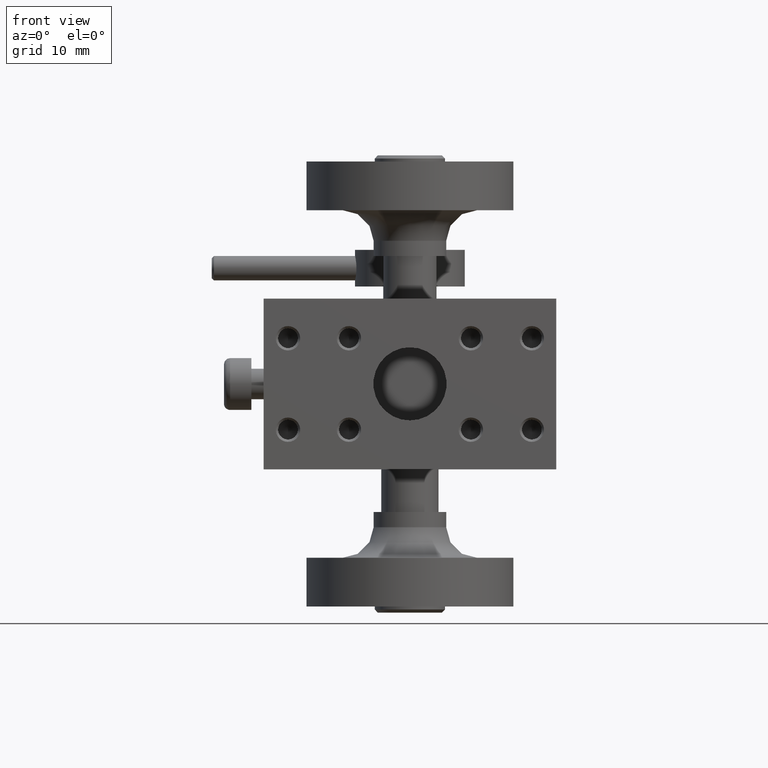
[diagram: clean part render]
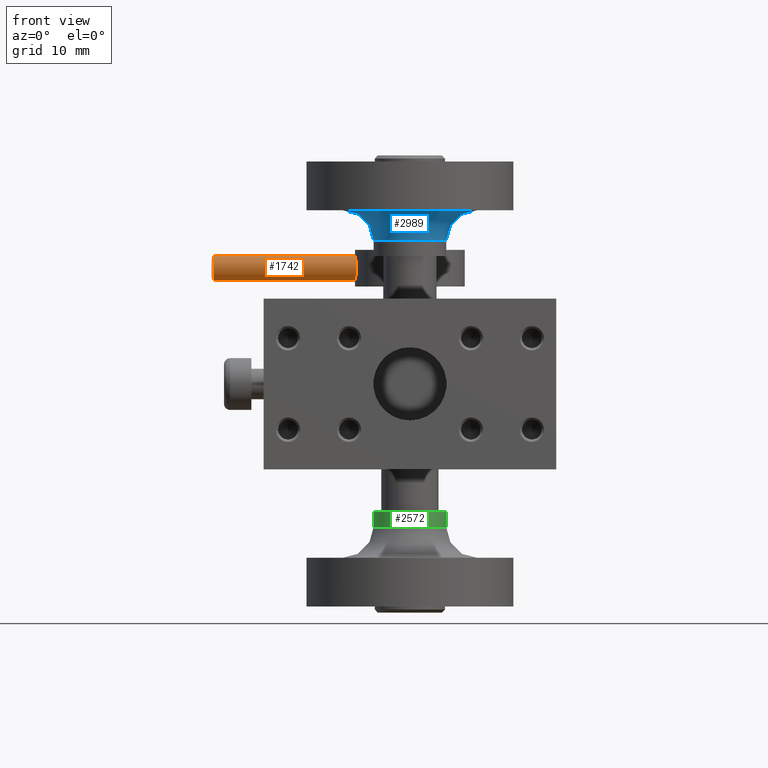
[diagram: same view with three faces highlighted in distinct colors, each labeled with its STEP entity id]
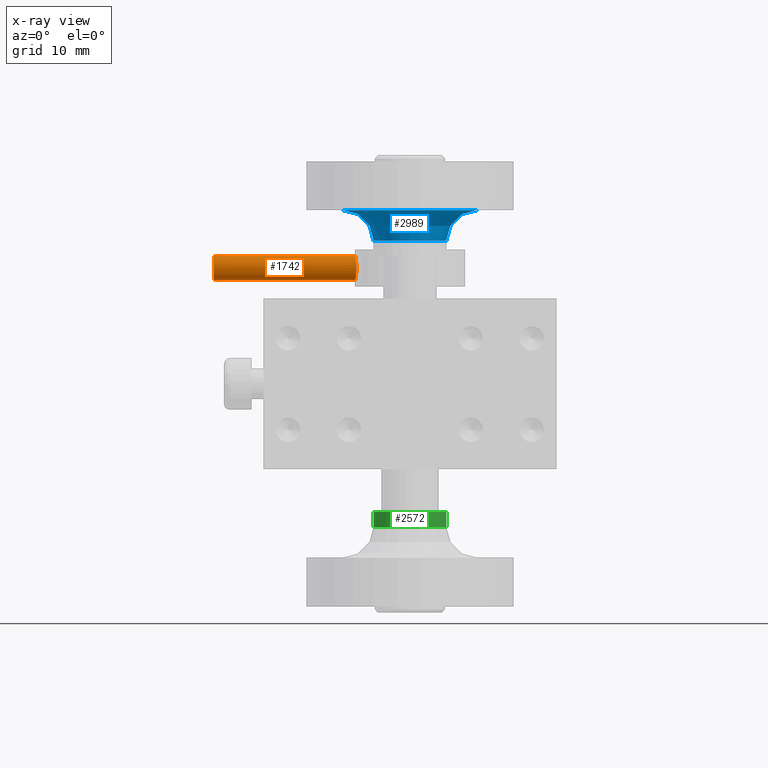
[diagram: x-ray of the same camera — body ghosted, the three highlighted faces saturated]
A machine part, front view with three faces highlighted in distinct colors.
The next image is the same camera in x-ray (body ghosted, the three faces saturated) — at least one of them is partly hidden behind the body in this view.
Their STEP definitions:

[orange] entity #1742 — the highlighted cylindrical surface (bore or boss wall) has radius 2 mm, axis along (-1, 0, 0).
#64 = CARTESIAN_POINT ( 'NONE',  ( -8.831305010887076534, 58.26405407196933339, 20.00179081906769696 ) ) ;
#88 = CARTESIAN_POINT ( 'NONE',  ( -8.818859570178997132, 58.20268530954765396, 19.88701229075947552 ) ) ;
#150 = CARTESIAN_POINT ( 'NONE',  ( -8.774993534416102747, 61.99987211788808139, 19.13263091305865160 ) ) ;
#184 = CARTESIAN_POINT ( 'NONE',  ( -8.977633386810012439, 60.64564713021426456, 17.10254942666283995 ) ) ;
#190 = B_SPLINE_CURVE_WITH_KNOTS ( 'NONE', 3,
 ( #247, #687, #712, #3403, #4994, #3052, #1072, #150, #4967, #2241, #299, #1874, #3456, #1009, #4138, #962, #3225, #1375, #2207, #1786, #4911, #2966, #2056, #1280, #2549, #595, #2180, #4525, #2867, #64, #88, #4502, #1635, #2424, #3755, #1225, #2574, #3996, #3367, #621, #987, #4937, #1401, #238, #4784, #573, #451, #2991, #3608, #2599, #1661, #839, #184, #3632, #1761, #211, #4547, #4117 ),
 .UNSPECIFIED., .T., .F.,
 ( 4, 2, 2, 2, 2, 2, 2, 2, 2, 2, 2, 2, 2, 2, 2, 2, 2, 2, 2, 2, 2, 2, 2, 2, 2, 2, 2, 2, 4 ),
 ( 0.000000000000000000, 0.0003941352477278607875, 0.0007882704954557215749, 0.001576540990911444451, 0.001970676238639300793, 0.002364811486367156702, 0.002758946734095013044, 0.003153081981822869386, 0.003941352477278575565, 0.004335487725006429739, 0.004729622972734283913, 0.005123758220462138087, 0.005517893468189993128, 0.006306163963645687598, 0.006700299211373531363, 0.007094434459101375129, 0.007488569706829219762, 0.007882704954557062660, 0.008276840202284908160, 0.008670975450012751926, 0.009065110697740595691, 0.009459245945468437722, 0.009853381193196283222, 0.01024751644092412699, 0.01103578693637981452, 0.01142992218410765828, 0.01182405743183550205, 0.01221819267956334755, 0.01261232792729118958 ),
 .UNSPECIFIED. ) ;
#211 = CARTESIAN_POINT ( 'NONE',  ( -8.917502514765095256, 61.22065754592762943, 17.41037671073584647 ) ) ;
#238 = CARTESIAN_POINT ( 'NONE',  ( -8.902977262330342256, 58.67875198931618286, 17.49293160655788526 ) ) ;
#247 = CARTESIAN_POINT ( 'NONE',  ( -8.888156550016324431, 61.41445153412981028, 17.58602444943420196 ) ) ;
#299 = CARTESIAN_POINT ( 'NONE',  ( -8.797990074076505351, 61.89683860794755077, 19.64735186239168740 ) ) ;
#451 = CARTESIAN_POINT ( 'NONE',  ( -8.957054917084052548, 59.11356516145057327, 17.20244084483862679 ) ) ;
#531 = CARTESIAN_POINT ( 'NONE',  ( -32.14644660940670207, 60.00000000000000000, 20.99999999999999645 ) ) ;
#573 = CARTESIAN_POINT ( 'NONE',  ( -8.944617482695820243, 58.99706819747080999, 17.26468799776463925 ) ) ;
#595 = CARTESIAN_POINT ( 'NONE',  ( -8.946534159258517249, 58.99114958408279108, 20.74644275218007650 ) ) ;
#621 = CARTESIAN_POINT ( 'NONE',  ( -8.819092993181074647, 58.20382329942341926, 18.11063649063985537 ) ) ;
#687 = CARTESIAN_POINT ( 'NONE',  ( -8.873338164349718227, 61.50756757836691690, 17.67917183912604173 ) ) ;
#712 = CARTESIAN_POINT ( 'NONE',  ( -8.858679671142855483, 61.59036795561515021, 17.78021660460191455 ) ) ;
#839 = CARTESIAN_POINT ( 'NONE',  ( -8.985831152566237989, 60.52092170582729125, 17.06459548621976907 ) ) ;
#962 = CARTESIAN_POINT ( 'NONE',  ( -8.917804242292493910, 61.22800950492057126, 20.60020480404096688 ) ) ;
#987 = CARTESIAN_POINT ( 'NONE',  ( -8.831557985451883752, 58.26534839263251797, 17.99603232198573366 ) ) ;
#1009 = CARTESIAN_POINT ( 'NONE',  ( -8.858998000904030334, 61.58858379776224723, 20.22202887588643350 ) ) ;
#1072 = CARTESIAN_POINT ( 'NONE',  ( -8.774906738433703168, 62.00025293390437753, 18.74056602299042851 ) ) ;
#1104 = CARTESIAN_POINT ( 'NONE',  ( -8.888156550016324431, 61.41445153412979607, 17.58602444943419840 ) ) ;
#1159 = CYLINDRICAL_SURFACE ( 'NONE', #5023, 1.999999999999998224 ) ;
#1225 = CARTESIAN_POINT ( 'NONE',  ( -8.774982090656209266, 58.00007767276981951, 18.86646384114354547 ) ) ;
#1254 = FACE_OUTER_BOUND ( 'NONE', #3427, .T. ) ;
#1280 = CARTESIAN_POINT ( 'NONE',  ( -8.985820059719086927, 59.47875781262972339, 20.93535415985943615 ) ) ;
#1375 = CARTESIAN_POINT ( 'NONE',  ( -8.977812146925176151, 60.64325570413960520, 20.89829801675436372 ) ) ;
#1401 = CARTESIAN_POINT ( 'NONE',  ( -8.873680949680938568, 58.49451441635044091, 17.67694875168363566 ) ) ;
#1567 = CARTESIAN_POINT ( 'NONE',  ( -32.50000000000000000, 60.00000000000000000, 19.00000000000000000 ) ) ;
#1635 = CARTESIAN_POINT ( 'NONE',  ( -8.789293611419482843, 58.06376704432153701, 19.51776164720243045 ) ) ;
#1661 = CARTESIAN_POINT ( 'NONE',  ( -8.997042444944609585, 60.26409878814008181, 17.01319304267731169 ) ) ;
#1668 = VERTEX_POINT ( 'NONE', #531 ) ;
#1742 = ADVANCED_FACE ( 'NONE', ( #1254, #4690 ), #1159, .T. ) ;
#1761 = CARTESIAN_POINT ( 'NONE',  ( -8.944423916348823056, 61.00455798733531054, 17.26570755168513926 ) ) ;
#1786 = CARTESIAN_POINT ( 'NONE',  ( -8.997112373006842745, 60.26165816729427860, 20.98712124053621508 ) ) ;
#1799 = VERTEX_POINT ( 'NONE', #1104 ) ;
#1874 = CARTESIAN_POINT ( 'NONE',  ( -8.819019693329307685, 61.79652934760862593, 19.88856257040423614 ) ) ;
#2056 = CARTESIAN_POINT ( 'NONE',  ( -8.997071154409214344, 59.73662535041851385, 20.98693808054947496 ) ) ;
#2083 = DIRECTION ( 'NONE',  ( 1.000000000000000000, -0.000000000000000000, -0.000000000000000000 ) ) ;
#2180 = CARTESIAN_POINT ( 'NONE',  ( -8.917321655240677103, 58.76875409608842205, 20.59736509075305833 ) ) ;
#2207 = CARTESIAN_POINT ( 'NONE',  ( -8.985981899307597942, 60.51829080094172753, 20.93610187406582313 ) ) ;
#2241 = CARTESIAN_POINT ( 'NONE',  ( -8.789577007395228847, 61.93495189037356852, 19.52270298812143068 ) ) ;
#2424 = CARTESIAN_POINT ( 'NONE',  ( -8.777923874578048569, 58.01285815843269233, 19.26142395349653569 ) ) ;
#2549 = CARTESIAN_POINT ( 'NONE',  ( -8.977442820382433908, 59.35186146320176448, 20.89654338184016069 ) ) ;
#2574 = CARTESIAN_POINT ( 'NONE',  ( -8.778011871873971472, 58.01324506886408017, 18.73573897015779366 ) ) ;
#2599 = CARTESIAN_POINT ( 'NONE',  ( -8.999995974400135879, 60.13113526681433285, 17.00001811519959816 ) ) ;
#2867 = CARTESIAN_POINT ( 'NONE',  ( -8.858609042981557380, 58.40924474416372192, 20.21925830989324879 ) ) ;
#2966 = CARTESIAN_POINT ( 'NONE',  ( -8.999965160138764020, 59.86660707435080298, 20.99984322052005226 ) ) ;
#2991 = CARTESIAN_POINT ( 'NONE',  ( -8.987908251906606694, 59.47473502122881683, 17.05268408847683403 ) ) ;
#3052 = CARTESIAN_POINT ( 'NONE',  ( -8.787285142150922823, 61.94781875897611201, 18.47651796090034537 ) ) ;
#3155 = DIRECTION ( 'NONE',  ( -1.000000000000000000, 0.000000000000000000, 0.000000000000000000 ) ) ;
#3175 = AXIS2_PLACEMENT_3D ( 'NONE', #4920, #2083, #4533 ) ;
#3225 = CARTESIAN_POINT ( 'NONE',  ( -8.946703827696220301, 61.00799107388254328, 20.74734285137749978 ) ) ;
#3335 = EDGE_CURVE ( 'NONE', #1668, #1668, #3502, .T. ) ;
#3367 = CARTESIAN_POINT ( 'NONE',  ( -8.797961077400529462, 58.10302007321767803, 18.35294100047950039 ) ) ;
#3403 = CARTESIAN_POINT ( 'NONE',  ( -8.831331672680617473, 61.73581584198189631, 17.99795951745396039 ) ) ;
#3427 = EDGE_LOOP ( 'NONE', ( #4430 ) ) ;
#3456 = CARTESIAN_POINT ( 'NONE',  ( -8.831761906039057308, 61.73361636401243402, 20.00574716427206212 ) ) ;
#3502 = CIRCLE ( 'NONE', #3175, 1.999999999999998224 ) ;
#3608 = CARTESIAN_POINT ( 'NONE',  ( -9.000008038450872050, 59.73855918929196918, 16.99996382697081998 ) ) ;
#3632 = CARTESIAN_POINT ( 'NONE',  ( -8.956932993349274952, 60.88775717252571695, 17.20303976180867522 ) ) ;
#3755 = CARTESIAN_POINT ( 'NONE',  ( -8.774946839711258662, 57.99992300984874305, 19.13119929170323630 ) ) ;
#3996 = CARTESIAN_POINT ( 'NONE',  ( -8.789439671023046685, 58.06442828895452379, 18.47981618663526504 ) ) ;
#4117 = CARTESIAN_POINT ( 'NONE',  ( -8.888156550016324431, 61.41445153412981028, 17.58602444943420196 ) ) ;
#4138 = CARTESIAN_POINT ( 'NONE',  ( -8.873582917087979638, 61.50609965658679101, 20.32243317948092454 ) ) ;
#4290 = EDGE_LOOP ( 'NONE', ( #4566 ) ) ;
#4430 = ORIENTED_EDGE ( 'NONE', *, *, #4761, .F. ) ;
#4502 = CARTESIAN_POINT ( 'NONE',  ( -8.797828561545564696, 58.10241289614768334, 19.64520855834951263 ) ) ;
#4525 = CARTESIAN_POINT ( 'NONE',  ( -8.873461614660152819, 58.49323957847180822, 20.32157423528913398 ) ) ;
#4533 = DIRECTION ( 'NONE',  ( 0.000000000000000000, 0.000000000000000000, 1.000000000000000000 ) ) ;
#4547 = CARTESIAN_POINT ( 'NONE',  ( -8.902974935682927082, 61.32133548989271787, 17.49287705974236928 ) ) ;
#4566 = ORIENTED_EDGE ( 'NONE', *, *, #3335, .T. ) ;
#4690 = FACE_OUTER_BOUND ( 'NONE', #4290, .T. ) ;
#4714 = DIRECTION ( 'NONE',  ( 0.000000000000000000, 0.000000000000000000, 1.000000000000000000 ) ) ;
#4761 = EDGE_CURVE ( 'NONE', #1799, #1799, #190, .T. ) ;
#4784 = CARTESIAN_POINT ( 'NONE',  ( -8.917489732322843921, 58.77916791236926031, 17.41042491229961087 ) ) ;
#4911 = CARTESIAN_POINT ( 'NONE',  ( -9.000034214852648873, 60.12864947651063119, 21.00015396694024261 ) ) ;
#4920 = CARTESIAN_POINT ( 'NONE',  ( -32.14644660940670207, 60.00000000000000000, 19.00000000000000000 ) ) ;
#4937 = CARTESIAN_POINT ( 'NONE',  ( -8.858783746034887940, 58.41022542782640414, 17.77951480668122031 ) ) ;
#4967 = CARTESIAN_POINT ( 'NONE',  ( -8.778025511689556026, 61.98669849325919756, 19.26511568933755925 ) ) ;
#4994 = CARTESIAN_POINT ( 'NONE',  ( -8.818663978387423441, 61.79826587525694492, 18.11498718503281324 ) ) ;
#5023 = AXIS2_PLACEMENT_3D ( 'NONE', #1567, #3155, #4714 ) ;

[blue] entity #2989 — the highlighted face is a freeform B-spline surface patch.
#8 = CARTESIAN_POINT ( 'NONE',  ( 10.84576281814307386, 33.33616983857814375, 28.50000000000000000 ) ) ;
#21 = CARTESIAN_POINT ( 'NONE',  ( -10.32301328794825857, 27.70051436524734711, 28.49999999999999645 ) ) ;
#32 = CARTESIAN_POINT ( 'NONE',  ( 10.81253218634800284, 29.47772096319952695, 28.49999999999999645 ) ) ;
#46 = CARTESIAN_POINT ( 'NONE',  ( -2.263678766794265940, 20.73540717239131581, 28.49999999999999645 ) ) ;
#56 = CARTESIAN_POINT ( 'NONE',  ( 4.476604233344045447, 41.54839239603763446, 28.50000000000000000 ) ) ;
#71 = CARTESIAN_POINT ( 'NONE',  ( -6.788948232526402116, 22.84266891922935017, 28.49999999999999645 ) ) ;
#81 = CARTESIAN_POINT ( 'NONE',  ( 10.32301328794719986, 35.29948563475921475, 28.50000000000000000 ) ) ;
#93 = CARTESIAN_POINT ( 'NONE',  ( -4.090524755338402763, 21.28874915770350995, 28.49999999999999645 ) ) ;
#104 = CARTESIAN_POINT ( 'NONE',  ( 4.729296338376712150, 41.43331652040602364, 28.50000000000000000 ) ) ;
#108 = CARTESIAN_POINT ( 'NONE',  ( -8.046773133671310418, 39.00954975399626079, 28.50000000000000000 ) ) ;
#129 = CARTESIAN_POINT ( 'NONE',  ( 9.499492088519998489, 37.04631907266310265, 28.50000000000000000 ) ) ;
#132 = CARTESIAN_POINT ( 'NONE',  ( -1.877512440152982576, 42.33859682355868159, 28.50000000000000000 ) ) ;
#157 = CARTESIAN_POINT ( 'NONE',  ( 3.039384346102490309, 42.07188887959836165, 28.50000000000000000 ) ) ;
#160 = CARTESIAN_POINT ( 'NONE',  ( -3.039888795196981075, 42.07174320190953409, 28.50000000000000000 ) ) ;
#179 = CARTESIAN_POINT ( 'NONE',  ( 2.067279717712431797, 42.30400195373159988, 28.50000000000000000 ) ) ;
#182 = CARTESIAN_POINT ( 'NONE',  ( -7.778174593052024299, 39.27817459305202163, 28.50000000000000000 ) ) ;
#185 = CARTESIAN_POINT ( 'NONE',  ( 5.546319072658886462, 22.00050791147807061, 28.49999999999999645 ) ) ;
#203 = CARTESIAN_POINT ( 'NONE',  ( 0.000000000000000000, 42.50000000000000000, 28.50000000000001066 ) ) ;
#207 = CARTESIAN_POINT ( 'NONE',  ( 2.220144429401344155, 42.27374004945463781, 28.50000000000000000 ) ) ;
#212 = CARTESIAN_POINT ( 'NONE',  ( 1.794773098638568376, 20.64730447128424728, 28.49999999999999645 ) ) ;
#222 = CARTESIAN_POINT ( 'NONE',  ( 0.000000000000000000, 42.50000000000000000, 28.50000000000000000 ) ) ;
#235 = CARTESIAN_POINT ( 'NONE',  ( 0.000000000000000000, 42.50000000000000000, 28.50000000000000000 ) ) ;
#240 = CARTESIAN_POINT ( 'NONE',  ( 6.019307287236565607, 22.29304937659483343, 28.49999999999999645 ) ) ;
#261 = CARTESIAN_POINT ( 'NONE',  ( 2.176536828188957884, 42.28262751245751616, 28.50000000000000000 ) ) ;
#266 = CARTESIAN_POINT ( 'NONE',  ( 3.632204160460883458, 21.11653339578368360, 28.49999999999999645 ) ) ;
#283 = CARTESIAN_POINT ( 'NONE',  ( -10.89668371099159572, 29.99544711161845356, 28.50000000000000000 ) ) ;
#292 = CARTESIAN_POINT ( 'NONE',  ( 1.877543261121425999, 20.66140888146818710, 28.49999999999999645 ) ) ;
#307 = CARTESIAN_POINT ( 'NONE',  ( -11.00003245526391993, 32.17316711392248862, 28.50000000000000000 ) ) ;
#316 = CARTESIAN_POINT ( 'NONE',  ( 9.102168392752393089, 25.32262682231831619, 28.49999999999999645 ) ) ;
#332 = CARTESIAN_POINT ( 'NONE',  ( -11.00000000000000000, 31.50000000000000000, 28.50000000000000000 ) ) ;
#340 = CARTESIAN_POINT ( 'NONE',  ( 8.994529674390957297, 25.16685965486529852, 28.49999999999999645 ) ) ;
#357 = CARTESIAN_POINT ( 'NONE',  ( -10.62094619133222650, 34.36876366042307041, 28.50000000000000000 ) ) ;
#369 = CARTESIAN_POINT ( 'NONE',  ( 10.47377425611592372, 28.11937428244305437, 28.49999999999999645 ) ) ;
#378 = CARTESIAN_POINT ( 'NONE',  ( -9.206950623405166567, 37.51930728723657182, 28.50000000000000000 ) ) ;
#391 = CARTESIAN_POINT ( 'NONE',  ( 10.85938925024986546, 33.25335304128855540, 28.50000000000000000 ) ) ;
#405 = CARTESIAN_POINT ( 'NONE',  ( -9.206950623405163014, 25.48069271276343528, 28.49999999999999645 ) ) ;
#416 = CARTESIAN_POINT ( 'NONE',  ( 11.00003245526391638, 30.82683288607993433, 28.50000000000000000 ) ) ;
#430 = CARTESIAN_POINT ( 'NONE',  ( -2.350747441563071582, 20.75370161607958863, 28.49999999999999645 ) ) ;
#441 = CARTESIAN_POINT ( 'NONE',  ( 6.097129069138452984, 40.65607778779104819, 28.50000000000000000 ) ) ;
#457 = CARTESIAN_POINT ( 'NONE',  ( -9.937246139662281763, 26.76809882622975323, 28.49999999999999645 ) ) ;
#467 = CARTESIAN_POINT ( 'NONE',  ( 8.791177963647635707, 38.15519334473045632, 28.50000000000000000 ) ) ;
#470 = CARTESIAN_POINT ( 'NONE',  ( -0.6715432973628792102, 42.48469658771519875, 28.50000000000000000 ) ) ;
#483 = CARTESIAN_POINT ( 'NONE',  ( -4.221108225916593071, 21.34200669538645556, 28.49999999999999645 ) ) ;
#493 = CARTESIAN_POINT ( 'NONE',  ( 4.895621435139932309, 41.35242786651708968, 28.50000000000000000 ) ) ;
#496 = CARTESIAN_POINT ( 'NONE',  ( 0.000000000000000000, 42.50000000000000000, 28.50000000000000000 ) ) ;
#512 = CARTESIAN_POINT ( 'NONE',  ( 0.000000000000000000, 23.42893218813452449, 28.50000000000001421 ) ) ;
#516 = CARTESIAN_POINT ( 'NONE',  ( 6.255256761407201438, 40.54834903357428288, 28.50000000000000000 ) ) ;
#520 = CARTESIAN_POINT ( 'NONE',  ( -1.753295508818672355, 42.35939989963333829, 28.50000000000000000 ) ) ;
#540 = CARTESIAN_POINT ( 'NONE',  ( 4.306540600045018152, 41.62198109385781919, 28.50000000000000000 ) ) ;
#543 = CARTESIAN_POINT ( 'NONE',  ( -3.715996679930620328, 41.85375794629277379, 28.50000000000000000 ) ) ;
#561 = CARTESIAN_POINT ( 'NONE',  ( -22.00000000000000711, 42.50000000000000711, 28.50000000000001776 ) ) ;
#572 = CARTESIAN_POINT ( 'NONE',  ( -1.338379036330881844, 42.41965708550475966, 28.50000000000000000 ) ) ;
#597 = CARTESIAN_POINT ( 'NONE',  ( 4.005819256978178977, 21.25521492875699892, 28.49999999999999645 ) ) ;
#622 = CARTESIAN_POINT ( 'NONE',  ( 3.210509480950293870, 20.97731410984226486, 28.49999999999999645 ) ) ;
#651 = CARTESIAN_POINT ( 'NONE',  ( 1.587579542300455504, 20.61479181976800845, 28.49999999999999645 ) ) ;
#669 = CARTESIAN_POINT ( 'NONE',  ( -10.93881877208044706, 32.83965884801013857, 28.50000000000000000 ) ) ;
#681 = CARTESIAN_POINT ( 'NONE',  ( 3.841230112169601529, 21.19235904122495739, 28.49999999999999645 ) ) ;
#696 = CARTESIAN_POINT ( 'NONE',  ( 0.000000000000000000, 25.50000000000000711, 23.50000000000000000 ) ) ;
#697 = CARTESIAN_POINT ( 'NONE',  ( -10.22767131168673060, 35.54904180518060031, 28.50000000000000000 ) ) ;
#707 = CARTESIAN_POINT ( 'NONE',  ( -2.022279036799777607, 20.68746781365200249, 28.49999999999999645 ) ) ;
#723 = CARTESIAN_POINT ( 'NONE',  ( -10.76459282760754554, 33.76367876680233593, 28.50000000000000000 ) ) ;
#734 = CARTESIAN_POINT ( 'NONE',  ( 10.93876200941283372, 32.67207319428457879, 28.50000000000000000 ) ) ;
#748 = CARTESIAN_POINT ( 'NONE',  ( -10.93876200941283017, 30.32792680571359867, 28.50000000000000000 ) ) ;
#757 = CARTESIAN_POINT ( 'NONE',  ( 9.933316520386750170, 26.77070366158768522, 28.49999999999999645 ) ) ;
#771 = CARTESIAN_POINT ( 'NONE',  ( -10.04839239601733603, 35.97660423337975288, 28.50000000000000000 ) ) ;
#783 = CARTESIAN_POINT ( 'NONE',  ( 10.74629838392321801, 29.14925255844223173, 28.49999999999999645 ) ) ;
#795 = CARTESIAN_POINT ( 'NONE',  ( -8.315424271168197379, 24.25902248819364004, 28.49999999999999645 ) ) ;
#809 = CARTESIAN_POINT ( 'NONE',  ( 10.81635905258231745, 29.49840642346640252, 28.49999999999999645 ) ) ;
#821 = CARTESIAN_POINT ( 'NONE',  ( -6.639310993052886190, 22.72741290031208550, 28.49999999999999645 ) ) ;
#832 = CARTESIAN_POINT ( 'NONE',  ( 10.46948457677263455, 34.87991590796575991, 28.50000000000000000 ) ) ;
#845 = CARTESIAN_POINT ( 'NONE',  ( -10.46948457677485500, 28.12008409204798909, 28.49999999999999645 ) ) ;
#856 = CARTESIAN_POINT ( 'NONE',  ( 9.937246139652133436, 36.23190117378662478, 28.50000000000000000 ) ) ;
#860 = CARTESIAN_POINT ( 'NONE',  ( -2.001593576533594820, 42.31635905258232100, 28.50000000000000000 ) ) ;
#869 = CARTESIAN_POINT ( 'NONE',  ( -8.791177963641752413, 24.84480665525938292, 28.49999999999999645 ) ) ;
#878 = CARTESIAN_POINT ( 'NONE',  ( 9.405091707902087705, 37.20561332384930608, 28.50000000000000000 ) ) ;
#894 = CARTESIAN_POINT ( 'NONE',  ( -3.039384346125205028, 20.92811112040647004, 28.49999999999999645 ) ) ;
#905 = CARTESIAN_POINT ( 'NONE',  ( 6.410257687862332077, 40.43975815264465012, 28.50000000000000000 ) ) ;
#908 = CARTESIAN_POINT ( 'NONE',  ( -3.379915907943159326, 41.96948457677902411, 28.50000000000000000 ) ) ;
#928 = CARTESIAN_POINT ( 'NONE',  ( 6.333140345133426052, 40.49452967439430751, 28.50000000000000000 ) ) ;
#932 = CARTESIAN_POINT ( 'NONE',  ( -4.394822190806438655, 41.59076123523573898, 28.50000000000000000 ) ) ;
#959 = CARTESIAN_POINT ( 'NONE',  ( -5.863276062041724579, 40.80757788619755644, 28.50000000000000000 ) ) ;
#989 = CARTESIAN_POINT ( 'NONE',  ( -2.001593576533592600, 20.68364094741768611, 28.49999999999999645 ) ) ;
#1011 = CARTESIAN_POINT ( 'NONE',  ( 1.918910854310835745, 20.66864032833909093, 28.49999999999999645 ) ) ;
#1035 = CARTESIAN_POINT ( 'NONE',  ( 3.548108076298308600, 21.08786073826599505, 28.49999999999999645 ) ) ;
#1054 = CARTESIAN_POINT ( 'NONE',  ( -8.884034468322361988, 37.98660878959309173, 28.50000000000000000 ) ) ;
#1060 = CARTESIAN_POINT ( 'NONE',  ( 0.6726362364346335498, 42.50000000000000000, 28.50000000000000000 ) ) ;
#1066 = CARTESIAN_POINT ( 'NONE',  ( -2.132855963152493484, 20.70874478338170377, 28.49999999999999645 ) ) ;
#1083 = CARTESIAN_POINT ( 'NONE',  ( -10.81635905258231567, 33.50159357653358683, 28.50000000000000000 ) ) ;
#1092 = CARTESIAN_POINT ( 'NONE',  ( 5.784444692942418698, 22.14366520294925422, 28.49999999999999645 ) ) ;
#1111 = CARTESIAN_POINT ( 'NONE',  ( -10.79125521661768694, 33.63285596315681403, 28.50000000000000000 ) ) ;
#1122 = CARTESIAN_POINT ( 'NONE',  ( 10.83135967166091440, 33.41891085430916064, 28.50000000000000000 ) ) ;
#1135 = CARTESIAN_POINT ( 'NONE',  ( -10.85938925024986368, 29.74664695871065234, 28.49999999999999645 ) ) ;
#1149 = CARTESIAN_POINT ( 'NONE',  ( 10.57188887959851975, 28.46061565388421855, 28.49999999999999645 ) ) ;
#1161 = CARTESIAN_POINT ( 'NONE',  ( -9.767367809129845924, 36.55981022536482783, 28.50000000000000000 ) ) ;
#1170 = CARTESIAN_POINT ( 'NONE',  ( 10.21125084229607793, 27.40947524466081475, 28.49999999999999645 ) ) ;
#1183 = CARTESIAN_POINT ( 'NONE',  ( -6.255256761405191490, 22.45165096642511671, 28.49999999999999645 ) ) ;
#1194 = CARTESIAN_POINT ( 'NONE',  ( 8.772587099681203426, 24.86068900694081663, 28.49999999999999645 ) ) ;
#1205 = CARTESIAN_POINT ( 'NONE',  ( -4.391839455031457895, 21.41429182962636091, 28.49999999999999645 ) ) ;
#1217 = CARTESIAN_POINT ( 'NONE',  ( 10.79981798107113633, 29.41084321784983757, 28.49999999999999645 ) ) ;
#1231 = CARTESIAN_POINT ( 'NONE',  ( -10.57174320190499017, 28.46011120479337109, 28.49999999999999645 ) ) ;
#1242 = EDGE_LOOP ( 'NONE', ( #4286 ) ) ;
#1243 = CARTESIAN_POINT ( 'NONE',  ( 10.27611930012584374, 35.42449139347560561, 28.50000000000000000 ) ) ;
#1246 = CARTESIAN_POINT ( 'NONE',  ( -1.918889793315732506, 42.33136357009593809, 28.50000000000000000 ) ) ;
#1257 = CARTESIAN_POINT ( 'NONE',  ( -6.935520508011023821, 22.96173358842544232, 28.49999999999999645 ) ) ;
#1271 = CARTESIAN_POINT ( 'NONE',  ( 4.560834935021601311, 41.51003377082709989, 28.50000000000000000 ) ) ;
#1274 = CARTESIAN_POINT ( 'NONE',  ( -4.049041805180604747, 41.72767131168673416, 28.50000000000000000 ) ) ;
#1285 = CARTESIAN_POINT ( 'NONE',  ( -3.380625717566373201, 21.02622574388906429, 28.49999999999999645 ) ) ;
#1293 = CARTESIAN_POINT ( 'NONE',  ( 6.935520508015613039, 40.03826641157318278, 28.50000000000000000 ) ) ;
#1317 = CARTESIAN_POINT ( 'NONE',  ( 11.99999999999996980, 37.49999999999998579, 26.42893218813453160 ) ) ;
#1323 = CARTESIAN_POINT ( 'NONE',  ( 10.52268589016126832, 34.71050948094222832, 28.50000000000000000 ) ) ;
#1326 = CARTESIAN_POINT ( 'NONE',  ( -3.548108076273763345, 41.91213926174188487, 28.50000000000000000 ) ) ;
#1343 = CARTESIAN_POINT ( 'NONE',  ( -22.00000000000001776, 20.49999999999999289, 28.50000000000001066 ) ) ;
#1348 = CARTESIAN_POINT ( 'NONE',  ( 2.437523060998647573, 42.22696490487162890, 28.50000000000000000 ) ) ;
#1376 = CARTESIAN_POINT ( 'NONE',  ( 7.778174593052023411, 23.72182540694797837, 28.49999999999999645 ) ) ;
#1390 = CARTESIAN_POINT ( 'NONE',  ( 22.00000000000001776, 20.49999999999999289, 28.50000000000001066 ) ) ;
#1402 = CARTESIAN_POINT ( 'NONE',  ( 5.386480983806736234, 21.90714534455540985, 28.49999999999999645 ) ) ;
#1416 = FACE_OUTER_BOUND ( 'NONE', #1792, .T. ) ;
#1424 = CARTESIAN_POINT ( 'NONE',  ( 1.504552888387975518, 20.60331628900839718, 28.49999999999999645 ) ) ;
#1442 = CARTESIAN_POINT ( 'NONE',  ( -10.79981798106991953, 33.58915678215461043, 28.50000000000000000 ) ) ;
#1445 = CARTESIAN_POINT ( 'NONE',  ( 2.022273560322791930, 42.31253319951112246, 28.50000000000000000 ) ) ;
#1449 = CARTESIAN_POINT ( 'NONE',  ( 1.347111479062088602E-15, 20.50000000000000000, 28.49999999999999645 ) ) ;
#1468 = CARTESIAN_POINT ( 'NONE',  ( -11.99999999999998401, 37.49999999999999289, 23.50000000000000711 ) ) ;
#1469 = CARTESIAN_POINT ( 'NONE',  ( -9.597247694416251917, 36.88818780570748856, 28.50000000000000000 ) ) ;
#1479 = CARTESIAN_POINT ( 'NONE',  ( 4.394822190799984263, 21.40923876476341547, 28.49999999999999645 ) ) ;
#1497 = CARTESIAN_POINT ( 'NONE',  ( -10.84576281814307208, 29.66383016142129136, 28.49999999999999645 ) ) ;
#1506 = CARTESIAN_POINT ( 'NONE',  ( 10.78262751245756057, 29.32346317180695294, 28.49999999999999645 ) ) ;
#1520 = CARTESIAN_POINT ( 'NONE',  ( -10.88520818023198622, 29.91242045770525948, 28.50000000000000000 ) ) ;
#1530 = CARTESIAN_POINT ( 'NONE',  ( 10.17560834091757016, 27.32180823989211405, 28.49999999999999645 ) ) ;
#1541 = CARTESIAN_POINT ( 'NONE',  ( -10.83500526872618508, 29.60177002761022891, 28.49999999999999645 ) ) ;
#1552 = AXIS2_PLACEMENT_3D ( 'NONE', #4226, #4532, #4252 ) ;
#1554 = CARTESIAN_POINT ( 'NONE',  ( 10.91963477251081827, 32.83849958055349560, 28.50000000000000000 ) ) ;
#1558 =( BOUNDED_SURFACE ( )  B_SPLINE_SURFACE ( 3, 3, ( 
 ( #3668, #2170, #1390, #4565, #1343, #561, #203 ),
 ( #4850, #4057, #2199, #512, #2093, #1699, #2934 ),
 ( #3283, #1317, #2909, #2144, #3333, #1752, #4903 ),
 ( #2564, #3746, #2227, #696, #2249, #1468, #5054 ) ),
 .UNSPECIFIED., .F., .T., .F. ) 
 B_SPLINE_SURFACE_WITH_KNOTS ( ( 4, 4 ),
 ( 4, 3, 4 ),
 ( 0.000000000000000000, 1.000000000000000000 ),
 ( 0.000000000000000000, 0.5000000000000000000, 1.000000000000000000 ),
 .UNSPECIFIED. ) 
 GEOMETRIC_REPRESENTATION_ITEM ( )  RATIONAL_B_SPLINE_SURFACE ( (
 ( 1.000000000000000000, 0.3333333333333333148, 0.3333333333333333148, 1.000000000000000000, 0.3333333333333333148, 0.3333333333333333148, 1.000000000000000000),
 ( 0.8047378541243646044, 0.2682459513747881830, 0.2682459513747881830, 0.8047378541243646044, 0.2682459513747881830, 0.2682459513747881830, 0.8047378541243646044),
 ( 0.8047378541243646044, 0.2682459513747881830, 0.2682459513747881830, 0.8047378541243646044, 0.2682459513747881830, 0.2682459513747881830, 0.8047378541243646044),
 ( 1.000000000000000000, 0.3333333333333333148, 0.3333333333333333148, 1.000000000000000000, 0.3333333333333333148, 0.3333333333333333148, 1.000000000000000000) ) ) 
 REPRESENTATION_ITEM ( '' )  SURFACE ( )  );
#1569 = CARTESIAN_POINT ( 'NONE',  ( -10.30764095877727904, 27.65876988783904977, 28.49999999999999645 ) ) ;
#1580 = CARTESIAN_POINT ( 'NONE',  ( 10.79556906870042177, 29.38898446937108844, 28.49999999999999645 ) ) ;
#1593 = CARTESIAN_POINT ( 'NONE',  ( -6.097129069134614276, 22.34392221220671360, 28.49999999999999645 ) ) ;
#1603 = CARTESIAN_POINT ( 'NONE',  ( 10.72696490487173371, 29.06247693899248574, 28.49999999999999645 ) ) ;
#1617 = CARTESIAN_POINT ( 'NONE',  ( -10.27611930012640684, 27.57550860652791158, 28.49999999999999645 ) ) ;
#1628 = CARTESIAN_POINT ( 'NONE',  ( 2.350747441550293360, 42.24629838392313275, 28.50000000000000000 ) ) ;
#1643 = CARTESIAN_POINT ( 'NONE',  ( -5.708020159644358493, 22.08955803414731278, 28.49999999999999645 ) ) ;
#1653 = CARTESIAN_POINT ( 'NONE',  ( 9.258922205874855038, 37.43982153004983360, 28.50000000000000000 ) ) ;
#1666 = CARTESIAN_POINT ( 'NONE',  ( -4.049041805180600306, 21.27232868831326584, 28.49999999999999645 ) ) ;
#1681 = CARTESIAN_POINT ( 'NONE',  ( 6.639310993057093491, 40.27258709968666039, 28.50000000000000000 ) ) ;
#1684 = CARTESIAN_POINT ( 'NONE',  ( -8.300137073177046076, 38.72866505898375067, 28.50000000000000000 ) ) ;
#1699 = CARTESIAN_POINT ( 'NONE',  ( -16.14213562373094391, 39.57106781186545419, 28.50000000000001776 ) ) ;
#1703 = CARTESIAN_POINT ( 'NONE',  ( 10.26022897074910034, 35.46608408854584127, 28.50000000000000000 ) ) ;
#1708 = CARTESIAN_POINT ( 'NONE',  ( -5.386480983815610024, 41.09285465544342486, 28.50000000000000000 ) ) ;
#1734 = CARTESIAN_POINT ( 'NONE',  ( 2.524005625129389419, 42.20659239045630073, 28.50000000000000000 ) ) ;
#1737 = CARTESIAN_POINT ( 'NONE',  ( -1.171941691496277915, 42.43878635086077367, 28.50000000000000000 ) ) ;
#1752 = CARTESIAN_POINT ( 'NONE',  ( -11.99999999999998224, 37.49999999999999289, 26.42893218813453515 ) ) ;
#1760 = CARTESIAN_POINT ( 'NONE',  ( -1.939569982712501250, 42.32765727493321606, 28.50000000000000000 ) ) ;
#1763 = CARTESIAN_POINT ( 'NONE',  ( 8.046773133669972822, 23.99045024600148679, 28.49999999999999645 ) ) ;
#1781 = CARTESIAN_POINT ( 'NONE',  ( 2.111015530626273673, 42.29556906870039512, 28.50000000000000000 ) ) ;
#1787 = CARTESIAN_POINT ( 'NONE',  ( 2.001593576533594820, 20.68364094741768611, 28.49999999999999645 ) ) ;
#1792 = EDGE_LOOP ( 'NONE', ( #4965 ) ) ;
#1814 = CARTESIAN_POINT ( 'NONE',  ( 6.655193344740250261, 22.70882203635726881, 28.49999999999999645 ) ) ;
#1840 = CARTESIAN_POINT ( 'NONE',  ( -1.339658848015659487, 20.56118122791955471, 28.49999999999999645 ) ) ;
#1857 = CARTESIAN_POINT ( 'NONE',  ( -9.410441965841359391, 37.20802015966474130, 28.50000000000000000 ) ) ;
#1860 = CARTESIAN_POINT ( 'NONE',  ( 2.132855963147168410, 42.29125521661944020, 28.50000000000000000 ) ) ;
#1866 = CARTESIAN_POINT ( 'NONE',  ( 1.172073194294969367, 20.56123799058716273, 28.49999999999999645 ) ) ;
#1885 = CARTESIAN_POINT ( 'NONE',  ( -9.102168392753021919, 37.67737317768063576, 28.50000000000000000 ) ) ;
#1893 = CARTESIAN_POINT ( 'NONE',  ( 10.12198109384861588, 27.19345939993799277, 28.49999999999999645 ) ) ;
#1912 = CARTESIAN_POINT ( 'NONE',  ( -10.82765432733599731, 29.56041409312150847, 28.49999999999999645 ) ) ;
#1921 = CARTESIAN_POINT ( 'NONE',  ( 8.657331080763331244, 24.71105176746672782, 28.49999999999999645 ) ) ;
#1940 = CARTESIAN_POINT ( 'NONE',  ( -10.70659239045072297, 34.02400562516026383, 28.50000000000000000 ) ) ;
#1950 = CARTESIAN_POINT ( 'NONE',  ( 10.14011755558823147, 27.23610882742717010, 28.49999999999999645 ) ) ;
#1960 = CARTESIAN_POINT ( 'NONE',  ( -2.868763660404620719, 20.87905380866516936, 28.49999999999999645 ) ) ;
#1976 = CARTESIAN_POINT ( 'NONE',  ( 10.79125521661946863, 29.36714403684970875, 28.49999999999999645 ) ) ;
#1987 = CARTESIAN_POINT ( 'NONE',  ( -6.486608789590476931, 22.61596553167364831, 28.49999999999999645 ) ) ;
#1996 = CARTESIAN_POINT ( 'NONE',  ( 10.80400195373161054, 29.43272028228595261, 28.49999999999999645 ) ) ;
#2010 = CARTESIAN_POINT ( 'NONE',  ( -10.38346660422029011, 27.86779583955449979, 28.49999999999999645 ) ) ;
#2021 = CARTESIAN_POINT ( 'NONE',  ( 6.019307287236567383, 40.70695062340516301, 28.50000000000000000 ) ) ;
#2036 = CARTESIAN_POINT ( 'NONE',  ( -7.228665058980266345, 23.19986292681763018, 28.49999999999999645 ) ) ;
#2048 = CARTESIAN_POINT ( 'NONE',  ( 9.767126024938537654, 36.56027875412928552, 28.50000000000000000 ) ) ;
#2052 = CARTESIAN_POINT ( 'NONE',  ( -3.841230112157330456, 41.80764095877898257, 28.50000000000000000 ) ) ;
#2064 = CARTESIAN_POINT ( 'NONE',  ( -4.178191760104179586, 21.32439165908065704, 28.49999999999999645 ) ) ;
#2073 = CARTESIAN_POINT ( 'NONE',  ( 10.30764095877637310, 35.34123011216658483, 28.50000000000000000 ) ) ;
#2093 = CARTESIAN_POINT ( 'NONE',  ( -16.14213562373095812, 23.42893218813452094, 28.50000000000001421 ) ) ;
#2100 = CARTESIAN_POINT ( 'NONE',  ( 10.22767131168673416, 35.54904180518060741, 28.50000000000000000 ) ) ;
#2103 = CARTESIAN_POINT ( 'NONE',  ( -1.794723785089058721, 42.35270465675873908, 28.50000000000000000 ) ) ;
#2104 = EDGE_CURVE ( 'NONE', #3158, #3158, #3134, .T. ) ;
#2122 = CARTESIAN_POINT ( 'NONE',  ( 3.380625717543658482, 41.97377425611576740, 28.50000000000000000 ) ) ;
#2144 = CARTESIAN_POINT ( 'NONE',  ( 0.000000000000000000, 25.50000000000001066, 26.42893218813453160 ) ) ;
#2150 = CARTESIAN_POINT ( 'NONE',  ( 2.045402653276835903, 42.30818592639208475, 28.50000000000000000 ) ) ;
#2154 = CARTESIAN_POINT ( 'NONE',  ( -1.979658861471026432, 42.32041921572601950, 28.50000000000000000 ) ) ;
#2170 = CARTESIAN_POINT ( 'NONE',  ( 22.00000000000000711, 42.50000000000000711, 28.50000000000001066 ) ) ;
#2182 = CARTESIAN_POINT ( 'NONE',  ( -2.067279717715184262, 20.69599804626899697, 28.49999999999999645 ) ) ;
#2199 = CARTESIAN_POINT ( 'NONE',  ( 16.14213562373095812, 23.42893218813452094, 28.50000000000001421 ) ) ;
#2208 = CARTESIAN_POINT ( 'NONE',  ( 3.966084088547138453, 21.23977102925147165, 28.49999999999999645 ) ) ;
#2227 = CARTESIAN_POINT ( 'NONE',  ( 11.99999999999998401, 25.50000000000000711, 23.50000000000000000 ) ) ;
#2235 = CARTESIAN_POINT ( 'NONE',  ( 1.979658861469663522, 20.67958078427354351, 28.49999999999999645 ) ) ;
#2249 = CARTESIAN_POINT ( 'NONE',  ( -11.99999999999998401, 25.50000000000000711, 23.50000000000000000 ) ) ;
#2250 = CARTESIAN_POINT ( 'NONE',  ( -10.91963477251081649, 30.16150041944484173, 28.50000000000000000 ) ) ;
#2262 = CARTESIAN_POINT ( 'NONE',  ( 3.924491393477494761, 21.22388069987498582, 28.49999999999999645 ) ) ;
#2278 = CARTESIAN_POINT ( 'NONE',  ( -9.156077787796117917, 37.59712906912952946, 28.50000000000000000 ) ) ;
#2286 = CARTESIAN_POINT ( 'NONE',  ( 10.89668371099159749, 33.00455288838018220, 28.50000000000000000 ) ) ;
#2305 = CARTESIAN_POINT ( 'NONE',  ( -8.939758152642022893, 37.91025768786159489, 28.50000000000000000 ) ) ;
#2313 = CARTESIAN_POINT ( 'NONE',  ( 10.82394898301108022, 33.46026095944736056, 28.50000000000000000 ) ) ;
#2327 = CARTESIAN_POINT ( 'NONE',  ( -10.66985782538758798, 28.80135257623453882, 28.49999999999999645 ) ) ;
#2336 = CARTESIAN_POINT ( 'NONE',  ( 10.15799330461121563, 27.27889177407854504, 28.49999999999999645 ) ) ;
#2353 = CARTESIAN_POINT ( 'NONE',  ( -10.21125084229670676, 35.59052475533685822, 28.50000000000000000 ) ) ;
#2362 = CARTESIAN_POINT ( 'NONE',  ( 10.77374004945469110, 29.27985557059367139, 28.49999999999999645 ) ) ;
#2373 = CARTESIAN_POINT ( 'NONE',  ( -9.452810805065650968, 25.87376188292221002, 28.49999999999999645 ) ) ;
#2389 = CARTESIAN_POINT ( 'NONE',  ( 10.93881877208044529, 30.16034115200636023, 28.49999999999999645 ) ) ;
#2402 = CARTESIAN_POINT ( 'NONE',  ( -9.405091707907798693, 25.79438667615991676, 28.49999999999999645 ) ) ;
#2413 = CARTESIAN_POINT ( 'NONE',  ( 6.177373177680975935, 40.60216839275425116, 28.50000000000000000 ) ) ;
#2431 = CARTESIAN_POINT ( 'NONE',  ( -10.24478507124236515, 27.49418074302091952, 28.49999999999999645 ) ) ;
#2440 = CARTESIAN_POINT ( 'NONE',  ( 6.486608789593919511, 40.38403446832532495, 28.50000000000000000 ) ) ;
#2443 = CARTESIAN_POINT ( 'NONE',  ( -1.005142226785145088, 42.45408976314558203, 28.50000000000000000 ) ) ;
#2454 = CARTESIAN_POINT ( 'NONE',  ( -4.560834935038853288, 21.48996622918298982, 28.49999999999999645 ) ) ;
#2467 = CARTESIAN_POINT ( 'NONE',  ( 7.778174593052022523, 39.27817459305202163, 28.50000000000000000 ) ) ;
#2470 = CARTESIAN_POINT ( 'NONE',  ( -2.352549017534683706, 42.25139644228305968, 28.50000000000000000 ) ) ;
#2482 = CARTESIAN_POINT ( 'NONE',  ( -2.524005625146426013, 20.79340760954732303, 28.49999999999999645 ) ) ;
#2491 = B_SPLINE_CURVE_WITH_KNOTS ( 'NONE', 3,
 ( #496, #4858, #470, #2443, #1737, #572, #4477, #3317, #2942, #520, #2103, #3677, #132, #2497, #1246, #1760, #2548, #2154, #860, #2470, #3726, #160, #3703, #908, #1326, #3243, #543, #2836, #2052, #2916, #4884, #2525, #4806, #1274, #932, #4451, #4422, #2863, #1708, #4398, #3292, #4041, #4501, #959, #4113, #4014, #3627, #3652, #182, #108, #1684, #3268, #4832, #3065, #1054, #2305, #3900, #3827, #1885, #2278, #378, #1857, #1469, #1161, #2671, #3437, #3342, #771, #5005, #3465, #2747, #3135, #4235, #4284, #2353, #697, #3491, #4212, #2647, #357, #4305, #1940, #5075, #4260, #723, #2700, #3877, #1111, #4910, #1442, #3924, #3035, #4590, #1083, #669, #307, #332, #4618, #4692, #3853, #748, #2250, #283, #1520, #3514, #1135, #5031, #1497, #4666, #1541, #3089, #1912, #5055, #4643, #3110, #2724, #2327, #1231, #4356, #845, #3255, #2010, #4002, #21, #1569, #3157, #1617, #3972, #2431, #3207, #4766, #457, #2848, #4410, #3613, #3589, #2373, #2402, #2822, #3949, #4717, #405, #869, #795, #4052, #3183, #2036, #1257, #71, #821, #1987, #3565, #4382, #1183, #2770, #1593, #4434, #1643, #3230, #4789, #4333, #2793, #2454, #4739, #1205, #4027, #2873, #483, #2064, #3638, #93, #1666, #4818, #1285, #894, #1960, #3540, #2482, #5102, #430, #46, #4193, #4220, #1066, #4961, #3811, #2182, #4600, #707, #989, #1840, #3840, #1449, #3756, #4140, #4986, #1866, #2575, #1424, #651, #3017, #5015, #212, #4574, #292, #3447, #1011, #3422, #3784, #2235, #1787, #3344, #4912, #3395, #622, #2623, #1035, #266, #3043, #2657, #681, #3729, #2262, #2208, #597, #2992, #1479, #3370, #4938, #3073, #1402, #185, #4548, #4627, #1092, #2684, #4166, #240, #1814, #4246, #1376, #1763, #2969, #4526, #1921, #1194, #3911, #3503, #340, #2756, #316, #4318, #3145, #4293, #4342, #3098, #3192, #757, #5065, #4702, #3962, #1893, #1950, #2336, #1530, #5039, #1170, #2779, #2710, #369, #1149, #4368, #5088, #3475, #1603, #783, #4749, #2362, #1506, #1976, #1580, #1217, #1996, #3122, #32, #809, #2389, #416, #3525, #3935, #3575, #2808, #734, #1554, #2286, #3861, #4679, #391, #3552, #8, #2733, #4654, #1122, #3167, #2313, #4727, #4269, #3886, #2522, #2885, #1323, #832, #4473, #4419, #2833, #81, #2073, #4776, #1243, #1703, #4394, #2100, #3314, #856, #2048, #4038, #3240, #129, #2494, #878, #2913, #4086, #1653, #4802, #467, #4854, #2467, #3624, #4011, #1293, #3983, #1681, #2440, #905, #928, #516, #2413, #441, #2021, #3649, #3217, #3598, #493, #104, #1271, #56, #4827, #540, #2858, #3265, #4446, #4061, #3674, #3289, #3697, #2122, #157, #2939, #4881, #1734, #1348, #1628, #4215, #207, #261, #1860, #1781, #4570, #179, #2150, #1445, #4185, #3039, #1060, #235 ),
 .UNSPECIFIED., .T., .F.,
 ( 4, 3, 3, 3, 3, 3, 3, 3, 3, 3, 3, 3, 3, 3, 3, 3, 3, 3, 3, 3, 3, 3, 3, 3, 3, 3, 3, 3, 3, 3, 3, 3, 3, 3, 3, 3, 3, 3, 3, 3, 3, 3, 3, 3, 3, 3, 3, 3, 3, 3, 3, 3, 3, 3, 3, 3, 3, 3, 3, 3, 3, 3, 3, 3, 3, 3, 3, 3, 3, 3, 3, 3, 3, 3, 3, 3, 3, 3, 3, 3, 3, 3, 3, 3, 3, 3, 3, 3, 3, 3, 3, 3, 3, 3, 3, 3, 3, 3, 3, 3, 3, 3, 3, 3, 3, 3, 3, 3, 3, 3, 3, 3, 3, 3, 3, 3, 3, 3, 3, 3, 3, 3, 3, 3, 3, 3, 3, 3, 4 ),
 ( 0.000000000000000000, 0.007812500000000000000, 0.01562500000000000000, 0.02343750000000000000, 0.03125000000000000000, 0.03906250000000000000, 0.04687500000000000000, 0.05468750000000000000, 0.06250000000000000000, 0.07031250000000000000, 0.07812500000000000000, 0.08593750000000000000, 0.09375000000000000000, 0.1015625000000000000, 0.1093750000000000000, 0.1171875000000000000, 0.1250000000000000000, 0.1328125000000000000, 0.1406250000000000000, 0.1484375000000000000, 0.1562500000000000000, 0.1640625000000000000, 0.1718750000000000000, 0.1796875000000000000, 0.1875000000000000000, 0.1953125000000000000, 0.2031250000000000000, 0.2109375000000000000, 0.2187500000000000000, 0.2265625000000000000, 0.2343750000000000000, 0.2421875000000000000, 0.2500000000000000000, 0.2578125000000000000, 0.2656250000000000000, 0.2734375000000000000, 0.2812500000000000000, 0.2890625000000000000, 0.2968750000000000000, 0.3046875000000000000, 0.3125000000000000000, 0.3203125000000000000, 0.3281250000000000000, 0.3359375000000000000, 0.3437500000000000000, 0.3515625000000000000, 0.3593750000000000000, 0.3671875000000000000, 0.3750000000000000000, 0.3828125000000000000, 0.3906250000000000000, 0.3984375000000000000, 0.4062500000000000000, 0.4140625000000000000, 0.4218750000000000000, 0.4296875000000000000, 0.4375000000000000000, 0.4453125000000000000, 0.4531250000000000000, 0.4609375000000000000, 0.4687500000000000000, 0.4765625000000000000, 0.4843750000000000000, 0.4921875000000000000, 0.5000000000000000000, 0.5078125000000000000, 0.5156250000000000000, 0.5234375000000000000, 0.5312500000000000000, 0.5390625000000000000, 0.5468750000000000000, 0.5546875000000000000, 0.5625000000000000000, 0.5703125000000000000, 0.5781250000000000000, 0.5859375000000000000, 0.5937500000000000000, 0.6015625000000000000, 0.6093750000000000000, 0.6171875000000000000, 0.6250000000000000000, 0.6328125000000000000, 0.6406250000000000000, 0.6484375000000000000, 0.6562500000000000000, 0.6640625000000000000, 0.6718750000000000000, 0.6796875000000000000, 0.6875000000000000000, 0.6953125000000000000, 0.7031250000000000000, 0.7109375000000000000, 0.7187500000000000000, 0.7265625000000000000, 0.7343750000000000000, 0.7421875000000000000, 0.7500000000000000000, 0.7578125000000000000, 0.7656250000000000000, 0.7734375000000000000, 0.7812500000000000000, 0.7890625000000000000, 0.7968750000000000000, 0.8046875000000000000, 0.8125000000000000000, 0.8203125000000000000, 0.8281250000000000000, 0.8359375000000000000, 0.8437500000000000000, 0.8515625000000000000, 0.8593750000000000000, 0.8671875000000000000, 0.8750000000000000000, 0.8828125000000000000, 0.8906250000000000000, 0.8984375000000000000, 0.9062500000000000000, 0.9140625000000000000, 0.9218750000000000000, 0.9296875000000000000, 0.9375000000000000000, 0.9453125000000000000, 0.9531250000000000000, 0.9609375000000000000, 0.9687500000000000000, 0.9765625000000000000, 0.9843750000000000000, 0.9921875000000000000, 1.000000000000000000 ),
 .UNSPECIFIED. ) ;
#2494 = CARTESIAN_POINT ( 'NONE',  ( 9.452810805058883048, 37.12623811708871102, 28.50000000000000000 ) ) ;
#2497 = CARTESIAN_POINT ( 'NONE',  ( -1.898203945795892800, 42.33501008630442897, 28.50000000000000000 ) ) ;
#2522 = CARTESIAN_POINT ( 'NONE',  ( 10.66985782538516503, 34.19864742378047140, 28.50000000000000000 ) ) ;
#2525 = CARTESIAN_POINT ( 'NONE',  ( -3.966084088541855124, 41.76022897075021945, 28.50000000000000000 ) ) ;
#2548 = CARTESIAN_POINT ( 'NONE',  ( -1.960250172109269773, 42.32395097977048692, 28.50000000000000000 ) ) ;
#2564 = CARTESIAN_POINT ( 'NONE',  ( 0.000000000000000000, 37.49999999999998579, 23.50000000000000000 ) ) ;
#2575 = CARTESIAN_POINT ( 'NONE',  ( 1.338499580563015767, 20.58036522748917818, 28.49999999999999645 ) ) ;
#2623 = CARTESIAN_POINT ( 'NONE',  ( 3.379915907973160216, 21.03051542323061085, 28.49999999999999645 ) ) ;
#2647 = CARTESIAN_POINT ( 'NONE',  ( -10.57188887959092760, 34.53938434614366315, 28.50000000000000000 ) ) ;
#2657 = CARTESIAN_POINT ( 'NONE',  ( 3.799485634762743480, 21.17698671205435090, 28.49999999999999645 ) ) ;
#2671 = CARTESIAN_POINT ( 'NONE',  ( -9.852427866486642927, 36.39562143519349746, 28.50000000000000000 ) ) ;
#2684 = CARTESIAN_POINT ( 'NONE',  ( 5.863276062038698555, 22.19242211380204921, 28.49999999999999645 ) ) ;
#2700 = CARTESIAN_POINT ( 'NONE',  ( -10.77374004945184360, 33.72014442941677714, 28.50000000000000000 ) ) ;
#2710 = CARTESIAN_POINT ( 'NONE',  ( 10.35903506681199282, 27.78282179608811475, 28.49999999999999645 ) ) ;
#2724 = CARTESIAN_POINT ( 'NONE',  ( -10.75139644228003100, 29.14745098245888499, 28.49999999999999645 ) ) ;
#2733 = CARTESIAN_POINT ( 'NONE',  ( 10.83859111853181645, 33.37754326111897996, 28.50000000000000000 ) ) ;
#2747 = CARTESIAN_POINT ( 'NONE',  ( -10.14011755558469652, 35.76389117257835437, 28.50000000000000000 ) ) ;
#2756 = CARTESIAN_POINT ( 'NONE',  ( 9.048349033571675193, 25.24474323859180558, 28.49999999999999645 ) ) ;
#2770 = CARTESIAN_POINT ( 'NONE',  ( -6.177373177679539751, 22.39783160724531541, 28.49999999999999645 ) ) ;
#2779 = CARTESIAN_POINT ( 'NONE',  ( 10.22767131168673416, 27.45095819481940325, 28.49999999999999645 ) ) ;
#2793 = CARTESIAN_POINT ( 'NONE',  ( -4.729296338397797506, 21.56668347960630427, 28.49999999999999645 ) ) ;
#2808 = CARTESIAN_POINT ( 'NONE',  ( 10.95406542169764030, 32.50527372957344596, 28.50000000000000000 ) ) ;
#2822 = CARTESIAN_POINT ( 'NONE',  ( -9.356334797054056907, 25.71555530706228865, 28.49999999999999645 ) ) ;
#2833 = CARTESIAN_POINT ( 'NONE',  ( 10.35375794628885515, 35.21599667994448879, 28.50000000000000000 ) ) ;
#2836 = CARTESIAN_POINT ( 'NONE',  ( -3.799485634748426932, 41.82301328795024631, 28.50000000000000000 ) ) ;
#2848 = CARTESIAN_POINT ( 'NONE',  ( -9.767126024948687757, 26.43972124588709605, 28.49999999999999645 ) ) ;
#2858 = CARTESIAN_POINT ( 'NONE',  ( 4.263891172558268217, 41.64011755559612027, 28.50000000000000000 ) ) ;
#2863 = CARTESIAN_POINT ( 'NONE',  ( -5.224467544304675748, 41.18206596758304983, 28.50000000000000000 ) ) ;
#2873 = CARTESIAN_POINT ( 'NONE',  ( -4.263891172566894205, 21.35988244440893169, 28.49999999999999645 ) ) ;
#2885 = CARTESIAN_POINT ( 'NONE',  ( 10.57174320190256722, 34.53988879522164268, 28.50000000000000000 ) ) ;
#2909 = CARTESIAN_POINT ( 'NONE',  ( 11.99999999999998224, 25.50000000000000355, 26.42893218813453160 ) ) ;
#2913 = CARTESIAN_POINT ( 'NONE',  ( 9.356334797049616014, 37.28444469294488073, 28.50000000000000000 ) ) ;
#2916 = CARTESIAN_POINT ( 'NONE',  ( -3.882898698397796000, 41.79200962950472586, 28.50000000000000000 ) ) ;
#2934 = CARTESIAN_POINT ( 'NONE',  ( 0.000000000000000000, 39.57106781186546840, 28.50000000000001421 ) ) ;
#2939 = CARTESIAN_POINT ( 'NONE',  ( 2.868763660381906000, 42.12094619133965523, 28.50000000000000000 ) ) ;
#2942 = CARTESIAN_POINT ( 'NONE',  ( -1.670438956277899401, 42.37279038538254383, 28.50000000000000000 ) ) ;
#2969 = CARTESIAN_POINT ( 'NONE',  ( 8.300137073175044122, 24.27133494101286715, 28.49999999999999645 ) ) ;
#2989 = ADVANCED_FACE ( 'NONE', ( #1416, #4494 ), #1558, .F. ) ;
#2992 = CARTESIAN_POINT ( 'NONE',  ( 4.049041805180601195, 21.27232868831326584, 28.49999999999999645 ) ) ;
#3017 = CARTESIAN_POINT ( 'NONE',  ( 1.670512926602163439, 20.62722330668192683, 28.49999999999999645 ) ) ;
#3035 = CARTESIAN_POINT ( 'NONE',  ( -10.80818592639146125, 33.54540265328020610, 28.50000000000000000 ) ) ;
#3039 = CARTESIAN_POINT ( 'NONE',  ( 1.339834095279164083, 42.43878635086077367, 28.50000000000000000 ) ) ;
#3043 = CARTESIAN_POINT ( 'NONE',  ( 3.715996679949028270, 21.14624205371313792, 28.49999999999999645 ) ) ;
#3065 = CARTESIAN_POINT ( 'NONE',  ( -8.772587099683041956, 38.13931099305607830, 28.50000000000000000 ) ) ;
#3073 = CARTESIAN_POINT ( 'NONE',  ( 5.224467544294996380, 21.81793403241567830, 28.49999999999999645 ) ) ;
#3089 = CARTESIAN_POINT ( 'NONE',  ( -10.83135967166091440, 29.58108914569053738, 28.49999999999999645 ) ) ;
#3098 = CARTESIAN_POINT ( 'NONE',  ( 9.767367809139264168, 26.44018977464989462, 28.49999999999999645 ) ) ;
#3110 = CARTESIAN_POINT ( 'NONE',  ( -10.81635905258231567, 29.49840642346640607, 28.49999999999999645 ) ) ;
#3122 = CARTESIAN_POINT ( 'NONE',  ( 10.80818592639208475, 29.45459734672207119, 28.49999999999999645 ) ) ;
#3134 = CIRCLE ( 'NONE', #1552, 5.999999999999998224 ) ;
#3135 = CARTESIAN_POINT ( 'NONE',  ( -10.15799330460832017, 35.72110822592598822, 28.50000000000000000 ) ) ;
#3145 = CARTESIAN_POINT ( 'NONE',  ( 9.206950623405164791, 25.48069271276343528, 28.49999999999999645 ) ) ;
#3157 = CARTESIAN_POINT ( 'NONE',  ( -10.29200962950332787, 27.61710130159924148, 28.49999999999999645 ) ) ;
#3158 = VERTEX_POINT ( 'NONE', #4694 ) ;
#3167 = CARTESIAN_POINT ( 'NONE',  ( 10.82765432733599731, 33.43958590687826415, 28.50000000000000000 ) ) ;
#3183 = CARTESIAN_POINT ( 'NONE',  ( -7.509549753993931986, 23.45322686632514575, 28.49999999999999645 ) ) ;
#3192 = CARTESIAN_POINT ( 'NONE',  ( 9.852427866496062947, 26.60437856482122854, 28.49999999999999645 ) ) ;
#3207 = CARTESIAN_POINT ( 'NONE',  ( -10.22767131168672883, 27.45095819481939259, 28.49999999999999645 ) ) ;
#3217 = CARTESIAN_POINT ( 'NONE',  ( 5.388187805653924300, 41.09724769444670045, 28.50000000000000000 ) ) ;
#3230 = CARTESIAN_POINT ( 'NONE',  ( -5.388187805676926345, 21.90275230556675012, 28.49999999999999645 ) ) ;
#3240 = CARTESIAN_POINT ( 'NONE',  ( 9.592854655442227596, 36.88648098381189300, 28.50000000000000000 ) ) ;
#3243 = CARTESIAN_POINT ( 'NONE',  ( -3.632204160439065355, 41.88346660422331524, 28.50000000000000000 ) ) ;
#3255 = CARTESIAN_POINT ( 'NONE',  ( -10.41213926173847781, 27.95189192371899622, 28.49999999999999645 ) ) ;
#3265 = CARTESIAN_POINT ( 'NONE',  ( 4.221108225909524947, 41.65799330461768335, 28.50000000000000000 ) ) ;
#3268 = CARTESIAN_POINT ( 'NONE',  ( -8.538266411569235714, 38.43552050801450548, 28.50000000000000000 ) ) ;
#3283 = CARTESIAN_POINT ( 'NONE',  ( 0.000000000000000000, 37.49999999999998579, 26.42893218813453160 ) ) ;
#3289 = CARTESIAN_POINT ( 'NONE',  ( 4.049041805180600306, 41.72767131168674126, 28.50000000000000000 ) ) ;
#3292 = CARTESIAN_POINT ( 'NONE',  ( -5.626238117091415525, 40.95281080505976234, 28.50000000000000000 ) ) ;
#3314 = CARTESIAN_POINT ( 'NONE',  ( 10.09076123523486679, 35.89482219080373682, 28.50000000000000000 ) ) ;
#3317 = CARTESIAN_POINT ( 'NONE',  ( -1.587491873767994166, 42.38522440786395151, 28.50000000000000000 ) ) ;
#3333 = CARTESIAN_POINT ( 'NONE',  ( -11.99999999999998224, 25.50000000000000355, 26.42893218813453160 ) ) ;
#3342 = CARTESIAN_POINT ( 'NONE',  ( -10.01003377080426304, 36.06083493506177717, 28.50000000000000000 ) ) ;
#3344 = CARTESIAN_POINT ( 'NONE',  ( 2.352549017556503586, 20.74860355772393916, 28.49999999999999645 ) ) ;
#3370 = CARTESIAN_POINT ( 'NONE',  ( 4.731901173781005276, 21.56275386034529262, 28.49999999999999645 ) ) ;
#3395 = CARTESIAN_POINT ( 'NONE',  ( 3.039888795229710006, 20.92825679810096773, 28.49999999999999645 ) ) ;
#3422 = CARTESIAN_POINT ( 'NONE',  ( 1.939585906879530697, 20.67234567266400447, 28.49999999999999645 ) ) ;
#3437 = CARTESIAN_POINT ( 'NONE',  ( -9.933316520378115300, 36.22929633842581865, 28.50000000000000000 ) ) ;
#3447 = CARTESIAN_POINT ( 'NONE',  ( 1.898229972391467291, 20.66499473127381492, 28.49999999999999645 ) ) ;
#3460 = VERTEX_POINT ( 'NONE', #222 ) ;
#3465 = CARTESIAN_POINT ( 'NONE',  ( -10.12198109384449118, 35.80654060006845185, 28.50000000000000000 ) ) ;
#3475 = CARTESIAN_POINT ( 'NONE',  ( 10.70659239045641620, 28.97599437486063678, 28.49999999999999645 ) ) ;
#3491 = CARTESIAN_POINT ( 'NONE',  ( -10.35903506680693020, 35.21717820393047305, 28.50000000000000000 ) ) ;
#3503 = CARTESIAN_POINT ( 'NONE',  ( 8.939758152640687072, 25.08974231213615269, 28.49999999999999645 ) ) ;
#3514 = CARTESIAN_POINT ( 'NONE',  ( -10.87277669331807672, 29.82948707340265670, 28.49999999999999645 ) ) ;
#3525 = CARTESIAN_POINT ( 'NONE',  ( 11.00000000000000000, 31.50000000000000000, 28.50000000000000000 ) ) ;
#3540 = CARTESIAN_POINT ( 'NONE',  ( -2.696970753411695121, 20.83415263837878584, 28.49999999999999645 ) ) ;
#3552 = CARTESIAN_POINT ( 'NONE',  ( 10.85269552871575804, 33.29477309863467127, 28.50000000000000000 ) ) ;
#3565 = CARTESIAN_POINT ( 'NONE',  ( -6.410257687859272302, 22.56024184735442972, 28.49999999999999645 ) ) ;
#3575 = CARTESIAN_POINT ( 'NONE',  ( 10.98467224626725347, 32.17167480015118031, 28.50000000000000000 ) ) ;
#3589 = CARTESIAN_POINT ( 'NONE',  ( -9.499492088527610179, 25.95368092734918264, 28.49999999999999645 ) ) ;
#3598 = CARTESIAN_POINT ( 'NONE',  ( 5.059810225311263565, 41.26736780916029090, 28.50000000000000000 ) ) ;
#3613 = CARTESIAN_POINT ( 'NONE',  ( -9.592854655451530377, 26.11351901620312788, 28.49999999999999645 ) ) ;
#3624 = CARTESIAN_POINT ( 'NONE',  ( 7.509549753996992649, 39.54677313367393765, 28.50000000000000000 ) ) ;
#3627 = CARTESIAN_POINT ( 'NONE',  ( -6.655193344765479857, 40.29117796361934012, 28.50000000000000000 ) ) ;
#3638 = CARTESIAN_POINT ( 'NONE',  ( -4.135275294291766102, 21.30677662277485496, 28.49999999999999645 ) ) ;
#3649 = CARTESIAN_POINT ( 'NONE',  ( 5.708020159629026757, 40.91044196586165071, 28.50000000000000000 ) ) ;
#3652 = CARTESIAN_POINT ( 'NONE',  ( -7.240977511813455614, 39.81542427116355043, 28.50000000000000000 ) ) ;
#3668 = CARTESIAN_POINT ( 'NONE',  ( 0.000000000000000000, 42.50000000000000000, 28.50000000000001066 ) ) ;
#3674 = CARTESIAN_POINT ( 'NONE',  ( 4.090524755340297247, 41.71125084229609570, 28.50000000000000000 ) ) ;
#3677 = CARTESIAN_POINT ( 'NONE',  ( -1.836129428867162128, 42.34577029806717974, 28.50000000000000000 ) ) ;
#3697 = CARTESIAN_POINT ( 'NONE',  ( 3.717178203903028333, 41.85903506681189157, 28.50000000000000000 ) ) ;
#3703 = CARTESIAN_POINT ( 'NONE',  ( -3.210509480917564940, 42.02268589016823341, 28.50000000000000000 ) ) ;
#3726 = CARTESIAN_POINT ( 'NONE',  ( -2.698647423755812902, 42.16985782539212835, 28.50000000000000000 ) ) ;
#3729 = CARTESIAN_POINT ( 'NONE',  ( 3.882898698407851956, 21.20799037049850000, 28.49999999999999645 ) ) ;
#3746 = CARTESIAN_POINT ( 'NONE',  ( 11.99999999999996980, 37.49999999999997868, 23.50000000000000000 ) ) ;
#3756 = CARTESIAN_POINT ( 'NONE',  ( 0.3365835569669592409, 20.50001622763195641, 28.49999999999999645 ) ) ;
#3784 = CARTESIAN_POINT ( 'NONE',  ( 1.960260959448225426, 20.67605101698892156, 28.49999999999999645 ) ) ;
#3811 = CARTESIAN_POINT ( 'NONE',  ( -2.089156782151667446, 20.70018201892966303, 28.49999999999999645 ) ) ;
#3827 = CARTESIAN_POINT ( 'NONE',  ( -9.048349033572554490, 37.75525676140672005, 28.50000000000000000 ) ) ;
#3840 = CARTESIAN_POINT ( 'NONE',  ( -0.6731671139339143739, 20.49996754473608362, 28.49999999999999645 ) ) ;
#3853 = CARTESIAN_POINT ( 'NONE',  ( -10.95406542169763675, 30.49472627042473150, 28.50000000000000000 ) ) ;
#3861 = CARTESIAN_POINT ( 'NONE',  ( 10.88520818023198800, 33.08757954229351839, 28.50000000000000000 ) ) ;
#3877 = CARTESIAN_POINT ( 'NONE',  ( -10.78262751245522466, 33.67653682820160554, 28.50000000000000000 ) ) ;
#3886 = CARTESIAN_POINT ( 'NONE',  ( 10.75139644227841451, 33.85254901755111945, 28.50000000000000000 ) ) ;
#3900 = CARTESIAN_POINT ( 'NONE',  ( -8.994529674392088836, 37.83314034513281143, 28.50000000000000000 ) ) ;
#3911 = CARTESIAN_POINT ( 'NONE',  ( 8.884034468320859190, 25.01339121040437519, 28.49999999999999645 ) ) ;
#3924 = CARTESIAN_POINT ( 'NONE',  ( -10.80400195373069039, 33.56727971771741181, 28.50000000000000000 ) ) ;
#3935 = CARTESIAN_POINT ( 'NONE',  ( 10.99998377236804004, 31.83658355696003639, 28.50000000000000000 ) ) ;
#3949 = CARTESIAN_POINT ( 'NONE',  ( -9.307577886200315120, 25.63672393796466409, 28.49999999999999645 ) ) ;
#3962 = CARTESIAN_POINT ( 'NONE',  ( 10.08570817036938116, 27.10816054495963456, 28.49999999999999645 ) ) ;
#3972 = CARTESIAN_POINT ( 'NONE',  ( -10.26022897074948581, 27.53391591145658523, 28.49999999999999645 ) ) ;
#3983 = CARTESIAN_POINT ( 'NONE',  ( 6.788948232530992222, 40.15733108076927493, 28.50000000000000000 ) ) ;
#4002 = CARTESIAN_POINT ( 'NONE',  ( -10.35375794629021584, 27.78400332006394891, 28.49999999999999645 ) ) ;
#4011 = CARTESIAN_POINT ( 'NONE',  ( 7.228665058984854674, 39.80013707318099137, 28.50000000000000000 ) ) ;
#4014 = CARTESIAN_POINT ( 'NONE',  ( -6.019307287236566495, 40.70695062340516301, 28.50000000000000000 ) ) ;
#4027 = CARTESIAN_POINT ( 'NONE',  ( -4.306540600055082102, 21.37801890614807121, 28.49999999999999645 ) ) ;
#4038 = CARTESIAN_POINT ( 'NONE',  ( 9.682065967581740651, 36.72446754430061588, 28.50000000000000000 ) ) ;
#4041 = CARTESIAN_POINT ( 'NONE',  ( -5.705613323851584262, 40.90509170790282667, 28.50000000000000000 ) ) ;
#4052 = CARTESIAN_POINT ( 'NONE',  ( -7.778174593052021635, 23.72182540694797837, 28.49999999999999645 ) ) ;
#4057 = CARTESIAN_POINT ( 'NONE',  ( 16.14213562373094391, 39.57106781186545419, 28.50000000000001421 ) ) ;
#4061 = CARTESIAN_POINT ( 'NONE',  ( 4.135275294288052628, 41.69322337722731930, 28.50000000000000000 ) ) ;
#4086 = CARTESIAN_POINT ( 'NONE',  ( 9.307577886197144323, 37.36327606204045537, 28.50000000000000000 ) ) ;
#4113 = CARTESIAN_POINT ( 'NONE',  ( -5.939821530045453102, 40.75892220587839176, 28.50000000000000000 ) ) ;
#4140 = CARTESIAN_POINT ( 'NONE',  ( 0.6716748001615709951, 20.51532775373274475, 28.49999999999999645 ) ) ;
#4166 = CARTESIAN_POINT ( 'NONE',  ( 5.939821530048605247, 22.24107779412452857, 28.49999999999999645 ) ) ;
#4185 = CARTESIAN_POINT ( 'NONE',  ( 2.001593576533591268, 42.31635905258232810, 28.50000000000000000 ) ) ;
#4193 = CARTESIAN_POINT ( 'NONE',  ( -2.220144429409863118, 20.72625995054718118, 28.49999999999999645 ) ) ;
#4212 = CARTESIAN_POINT ( 'NONE',  ( -10.47377425610832979, 34.88062571758482733, 28.50000000000000000 ) ) ;
#4215 = CARTESIAN_POINT ( 'NONE',  ( 2.263678766784327223, 42.26459282761080516, 28.50000000000000000 ) ) ;
#4220 = CARTESIAN_POINT ( 'NONE',  ( -2.176536828195938966, 20.71737248754397598, 28.49999999999999645 ) ) ;
#4226 = CARTESIAN_POINT ( 'NONE',  ( 0.000000000000000000, 31.49999999999999289, 23.50000000000000000 ) ) ;
#4235 = CARTESIAN_POINT ( 'NONE',  ( -10.17560834091536037, 35.67819176011134630, 28.50000000000000000 ) ) ;
#4246 = CARTESIAN_POINT ( 'NONE',  ( 7.240977511816125478, 23.18457572884095441, 28.49999999999999645 ) ) ;
#4252 = DIRECTION ( 'NONE',  ( 0.000000000000000000, 1.000000000000000000, 0.000000000000000000 ) ) ;
#4260 = CARTESIAN_POINT ( 'NONE',  ( -10.74629838391894587, 33.85074744157344639, 28.50000000000000000 ) ) ;
#4269 = CARTESIAN_POINT ( 'NONE',  ( 10.81635905258231567, 33.50159357653358683, 28.50000000000000000 ) ) ;
#4272 = EDGE_CURVE ( 'NONE', #3460, #3460, #2491, .T. ) ;
#4284 = CARTESIAN_POINT ( 'NONE',  ( -10.19322337722240235, 35.63527529429670437, 28.50000000000000000 ) ) ;
#4286 = ORIENTED_EDGE ( 'NONE', *, *, #2104, .F. ) ;
#4293 = CARTESIAN_POINT ( 'NONE',  ( 9.410441965847637036, 25.79197984034507840, 28.49999999999999645 ) ) ;
#4305 = CARTESIAN_POINT ( 'NONE',  ( -10.66584736161882496, 34.19697075342860870, 28.50000000000000000 ) ) ;
#4318 = CARTESIAN_POINT ( 'NONE',  ( 9.156077787794547618, 25.40287093086802273, 28.49999999999999645 ) ) ;
#4333 = CARTESIAN_POINT ( 'NONE',  ( -4.895621435162935242, 21.64757213349636444, 28.49999999999999645 ) ) ;
#4342 = CARTESIAN_POINT ( 'NONE',  ( 9.597247694425670161, 26.11181219430723033, 28.49999999999999645 ) ) ;
#4356 = CARTESIAN_POINT ( 'NONE',  ( -10.52268589016369305, 28.28949051907278545, 28.49999999999999645 ) ) ;
#4368 = CARTESIAN_POINT ( 'NONE',  ( 10.62094619133981865, 28.63123633960480063, 28.49999999999999645 ) ) ;
#4382 = CARTESIAN_POINT ( 'NONE',  ( -6.333140345130843230, 22.50547032560491800, 28.49999999999999645 ) ) ;
#4394 = CARTESIAN_POINT ( 'NONE',  ( 10.24478507124321958, 35.50581925697770913, 28.50000000000000000 ) ) ;
#4398 = CARTESIAN_POINT ( 'NONE',  ( -5.546319072666146432, 40.99949208852098081, 28.50000000000000000 ) ) ;
#4410 = CARTESIAN_POINT ( 'NONE',  ( -9.682065967591892530, 26.27553245571576923, 28.49999999999999645 ) ) ;
#4419 = CARTESIAN_POINT ( 'NONE',  ( 10.38346660421867362, 35.13220416045550820, 28.50000000000000000 ) ) ;
#4422 = CARTESIAN_POINT ( 'NONE',  ( -5.060278754133345380, 41.26712602493984861, 28.50000000000000000 ) ) ;
#4434 = CARTESIAN_POINT ( 'NONE',  ( -6.019307287236562942, 22.29304937659483343, 28.49999999999999645 ) ) ;
#4446 = CARTESIAN_POINT ( 'NONE',  ( 4.178191760098789231, 41.67560834092250133, 28.50000000000000000 ) ) ;
#4451 = CARTESIAN_POINT ( 'NONE',  ( -4.731901173790686421, 41.43724613965344616, 28.50000000000000000 ) ) ;
#4473 = CARTESIAN_POINT ( 'NONE',  ( 10.41213926173666060, 35.04810807629225877, 28.50000000000000000 ) ) ;
#4477 = CARTESIAN_POINT ( 'NONE',  ( -1.504454261288956651, 42.39670196707755423, 28.50000000000000000 ) ) ;
#4494 = FACE_OUTER_BOUND ( 'NONE', #1242, .T. ) ;
#4501 = CARTESIAN_POINT ( 'NONE',  ( -5.784444692946654420, 40.85633479705018800, 28.50000000000000000 ) ) ;
#4526 = CARTESIAN_POINT ( 'NONE',  ( 8.538266411567233760, 24.56447949198210878, 28.49999999999999645 ) ) ;
#4532 = DIRECTION ( 'NONE',  ( 0.000000000000000000, 9.251858538542970348E-17, -1.000000000000000000 ) ) ;
#4548 = CARTESIAN_POINT ( 'NONE',  ( 5.626238117084962020, 22.04718919493939921, 28.49999999999999645 ) ) ;
#4565 = CARTESIAN_POINT ( 'NONE',  ( 0.000000000000000000, 20.49999999999998934, 28.50000000000001066 ) ) ;
#4570 = CARTESIAN_POINT ( 'NONE',  ( 2.089156782148028135, 42.29981798107111501, 28.50000000000000000 ) ) ;
#4574 = CARTESIAN_POINT ( 'NONE',  ( 1.836169838581343638, 20.65423718185692792, 28.49999999999999645 ) ) ;
#4590 = CARTESIAN_POINT ( 'NONE',  ( -10.81253218634799929, 33.52227903679994370, 28.50000000000000000 ) ) ;
#4600 = CARTESIAN_POINT ( 'NONE',  ( -2.045402653278700633, 20.69181407360832736, 28.49999999999999645 ) ) ;
#4618 = CARTESIAN_POINT ( 'NONE',  ( -10.99998377236803826, 31.16341644303875569, 28.50000000000000000 ) ) ;
#4627 = CARTESIAN_POINT ( 'NONE',  ( 5.705613323846137952, 22.09490829209646279, 28.49999999999999645 ) ) ;
#4643 = CARTESIAN_POINT ( 'NONE',  ( -10.82041921572620957, 29.52034113852937480, 28.49999999999999645 ) ) ;
#4654 = CARTESIAN_POINT ( 'NONE',  ( 10.83500526872618686, 33.39822997238940872, 28.50000000000000000 ) ) ;
#4666 = CARTESIAN_POINT ( 'NONE',  ( -10.83859111853181467, 29.62245673888058306, 28.49999999999999645 ) ) ;
#4679 = CARTESIAN_POINT ( 'NONE',  ( 10.87277669331807850, 33.17051292659631656, 28.50000000000000000 ) ) ;
#4692 = CARTESIAN_POINT ( 'NONE',  ( -10.98467224626725169, 30.82832519984699715, 28.50000000000000000 ) ) ;
#4694 = CARTESIAN_POINT ( 'NONE',  ( 0.000000000000000000, 37.49999999999999289, 23.50000000000000000 ) ) ;
#4702 = CARTESIAN_POINT ( 'NONE',  ( 10.04839239602361900, 27.02339576663006326, 28.49999999999999645 ) ) ;
#4717 = CARTESIAN_POINT ( 'NONE',  ( -9.258922205875590450, 25.56017846995144183, 28.49999999999999645 ) ) ;
#4727 = CARTESIAN_POINT ( 'NONE',  ( 10.82041921572630905, 33.47965886146998571, 28.50000000000000000 ) ) ;
#4739 = CARTESIAN_POINT ( 'NONE',  ( -4.476604233359380736, 21.45160760397133615, 28.49999999999999645 ) ) ;
#4749 = CARTESIAN_POINT ( 'NONE',  ( 10.76459282761086733, 29.23632123320985698, 28.49999999999999645 ) ) ;
#4766 = CARTESIAN_POINT ( 'NONE',  ( -10.09076123524162938, 27.10517780920718778, 28.49999999999999645 ) ) ;
#4776 = CARTESIAN_POINT ( 'NONE',  ( 10.29200962950258891, 35.38289869840537705, 28.50000000000000000 ) ) ;
#4789 = CARTESIAN_POINT ( 'NONE',  ( -5.059810225334265610, 21.73263219085315967, 28.49999999999999645 ) ) ;
#4802 = CARTESIAN_POINT ( 'NONE',  ( 9.206950623405163014, 37.51930728723657182, 28.50000000000000000 ) ) ;
#4806 = CARTESIAN_POINT ( 'NONE',  ( -4.005819256977376064, 41.74478507124310056, 28.50000000000000000 ) ) ;
#4818 = CARTESIAN_POINT ( 'NONE',  ( -3.717178203918171331, 21.14096493319133074, 28.49999999999999645 ) ) ;
#4827 = CARTESIAN_POINT ( 'NONE',  ( 4.391839455018518024, 41.58570817038121703, 28.50000000000000000 ) ) ;
#4832 = CARTESIAN_POINT ( 'NONE',  ( -8.657331080765331421, 38.28894823252988999, 28.50000000000000000 ) ) ;
#4850 = CARTESIAN_POINT ( 'NONE',  ( 0.000000000000000000, 39.57106781186546840, 28.50000000000001421 ) ) ;
#4854 = CARTESIAN_POINT ( 'NONE',  ( 8.315424271162083159, 38.74097751180818960, 28.50000000000000000 ) ) ;
#4858 = CARTESIAN_POINT ( 'NONE',  ( -0.3364958884344975698, 42.50000000000000000, 28.50000000000000000 ) ) ;
#4881 = CARTESIAN_POINT ( 'NONE',  ( 2.696970753390872666, 42.16584736162563729, 28.50000000000000000 ) ) ;
#4884 = CARTESIAN_POINT ( 'NONE',  ( -3.924491393469825784, 41.77611930012746910, 28.50000000000000000 ) ) ;
#4903 = CARTESIAN_POINT ( 'NONE',  ( 0.000000000000000000, 37.49999999999998579, 26.42893218813453160 ) ) ;
#4910 = CARTESIAN_POINT ( 'NONE',  ( -10.79556906869891719, 33.61101553063441827, 28.50000000000000000 ) ) ;
#4912 = CARTESIAN_POINT ( 'NONE',  ( 2.698647423788542277, 20.83014217461836992, 28.49999999999999645 ) ) ;
#4938 = CARTESIAN_POINT ( 'NONE',  ( 5.060278754123666012, 21.73287397505888308, 28.49999999999999645 ) ) ;
#4961 = CARTESIAN_POINT ( 'NONE',  ( -2.111015530630770520, 20.70443093130056766, 28.49999999999999645 ) ) ;
#4965 = ORIENTED_EDGE ( 'NONE', *, *, #4272, .F. ) ;
#4986 = CARTESIAN_POINT ( 'NONE',  ( 1.005273729583836539, 20.54593457830235792, 28.49999999999999645 ) ) ;
#5005 = CARTESIAN_POINT ( 'NONE',  ( -10.08570817036408052, 35.89183945504864681, 28.50000000000000000 ) ) ;
#5015 = CARTESIAN_POINT ( 'NONE',  ( 1.753353041293099990, 20.64061074975014165, 28.49999999999999645 ) ) ;
#5031 = CARTESIAN_POINT ( 'NONE',  ( -10.85269552871575627, 29.70522690136464661, 28.49999999999999645 ) ) ;
#5039 = CARTESIAN_POINT ( 'NONE',  ( 10.19322337722392291, 27.36472470570568305, 28.49999999999999645 ) ) ;
#5054 = CARTESIAN_POINT ( 'NONE',  ( 0.000000000000000000, 37.49999999999998579, 23.50000000000000000 ) ) ;
#5055 = CARTESIAN_POINT ( 'NONE',  ( -10.82394898301108022, 29.53973904055247601, 28.49999999999999645 ) ) ;
#5065 = CARTESIAN_POINT ( 'NONE',  ( 10.01003377081132939, 26.93916506494926821, 28.49999999999999645 ) ) ;
#5075 = CARTESIAN_POINT ( 'NONE',  ( -10.72696490486667287, 33.93752306102609850, 28.50000000000000000 ) ) ;
#5088 = CARTESIAN_POINT ( 'NONE',  ( 10.66584736162578295, 28.80302924659694241, 28.49999999999999645 ) ) ;
#5102 = CARTESIAN_POINT ( 'NONE',  ( -2.437523061013791903, 20.77303509513159341, 28.49999999999999645 ) ) ;

[green] entity #2572 — the highlighted cylindrical surface (bore or boss wall) has radius 6 mm, axis along (0, 0, -1).
#175 = DIRECTION ( 'NONE',  ( 0.000000000000000000, 9.251858538542970348E-17, -1.000000000000000000 ) ) ;
#294 = EDGE_CURVE ( 'NONE', #3492, #3492, #2886, .T. ) ;
#556 = AXIS2_PLACEMENT_3D ( 'NONE', #4753, #1222, #4781 ) ;
#614 = DIRECTION ( 'NONE',  ( 0.000000000000000000, 1.000000000000000000, 0.000000000000000000 ) ) ;
#779 = CYLINDRICAL_SURFACE ( 'NONE', #4895, 5.999999999999991118 ) ;
#1222 = DIRECTION ( 'NONE',  ( -0.000000000000000000, -9.251858538542970348E-17, 1.000000000000000000 ) ) ;
#1694 = CARTESIAN_POINT ( 'NONE',  ( 0.000000000000000000, 37.49999999999999289, -21.00000000000000000 ) ) ;
#1728 = CARTESIAN_POINT ( 'NONE',  ( 0.000000000000000000, 31.50000000000000000, -21.00000000000000000 ) ) ;
#1913 = CARTESIAN_POINT ( 'NONE',  ( 0.000000000000000000, 37.49999999999999289, -23.50000000000000000 ) ) ;
#1945 = DIRECTION ( 'NONE',  ( 0.000000000000000000, 9.251858538542970348E-17, -1.000000000000000000 ) ) ;
#2268 = AXIS2_PLACEMENT_3D ( 'NONE', #1728, #175, #614 ) ;
#2572 = ADVANCED_FACE ( 'NONE', ( #2752, #4672 ), #779, .T. ) ;
#2752 = FACE_OUTER_BOUND ( 'NONE', #3159, .T. ) ;
#2886 = CIRCLE ( 'NONE', #556, 5.999999999999991118 ) ;
#2965 = EDGE_CURVE ( 'NONE', #3353, #3353, #4650, .T. ) ;
#3159 = EDGE_LOOP ( 'NONE', ( #4701 ) ) ;
#3210 = EDGE_LOOP ( 'NONE', ( #4993 ) ) ;
#3353 = VERTEX_POINT ( 'NONE', #1694 ) ;
#3492 = VERTEX_POINT ( 'NONE', #1913 ) ;
#3521 = DIRECTION ( 'NONE',  ( 0.000000000000000000, 1.000000000000000000, 0.000000000000000000 ) ) ;
#4242 = CARTESIAN_POINT ( 'NONE',  ( 0.000000000000000000, 31.50000000000000000, -37.50000000000000000 ) ) ;
#4650 = CIRCLE ( 'NONE', #2268, 5.999999999999991118 ) ;
#4672 = FACE_OUTER_BOUND ( 'NONE', #3210, .T. ) ;
#4701 = ORIENTED_EDGE ( 'NONE', *, *, #2965, .T. ) ;
#4753 = CARTESIAN_POINT ( 'NONE',  ( 0.000000000000000000, 31.50000000000000000, -23.50000000000000000 ) ) ;
#4781 = DIRECTION ( 'NONE',  ( 0.000000000000000000, 1.000000000000000000, 0.000000000000000000 ) ) ;
#4895 = AXIS2_PLACEMENT_3D ( 'NONE', #4242, #1945, #3521 ) ;
#4993 = ORIENTED_EDGE ( 'NONE', *, *, #294, .T. ) ;